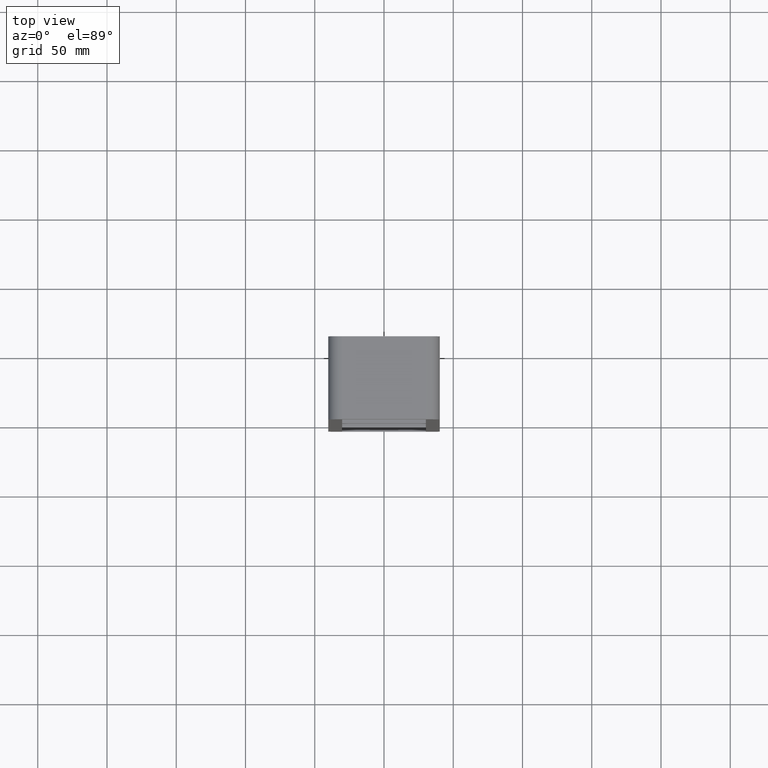
[diagram: clean part render]
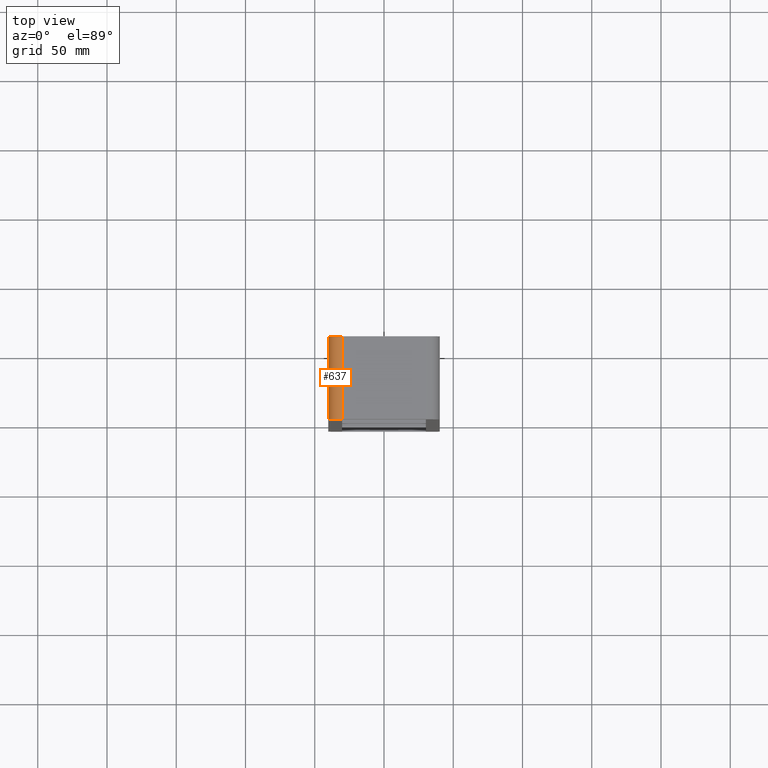
[diagram: same view with one face highlighted and labeled with its STEP entity id]
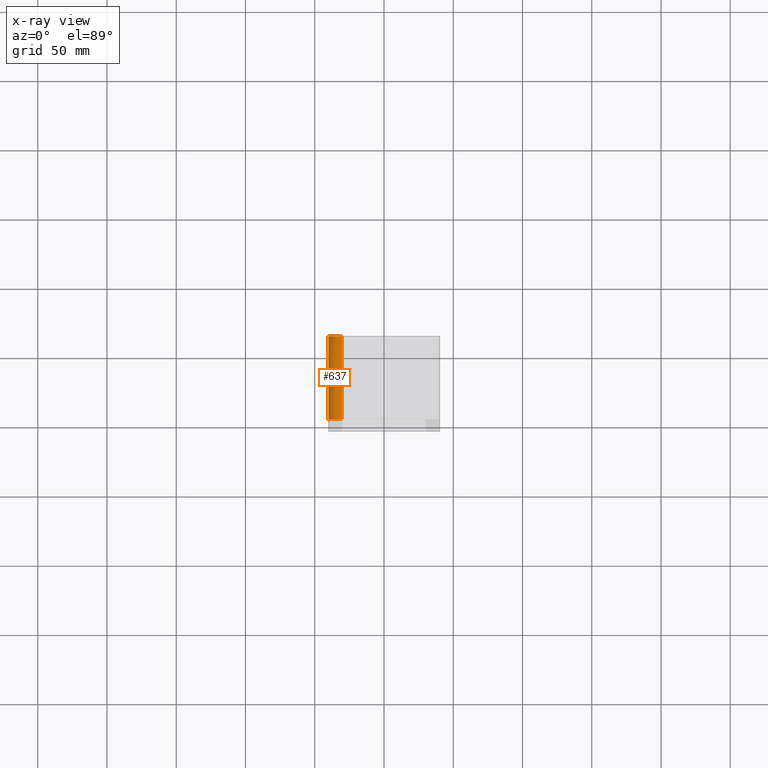
[diagram: x-ray of the same camera — body ghosted, the highlighted face saturated]
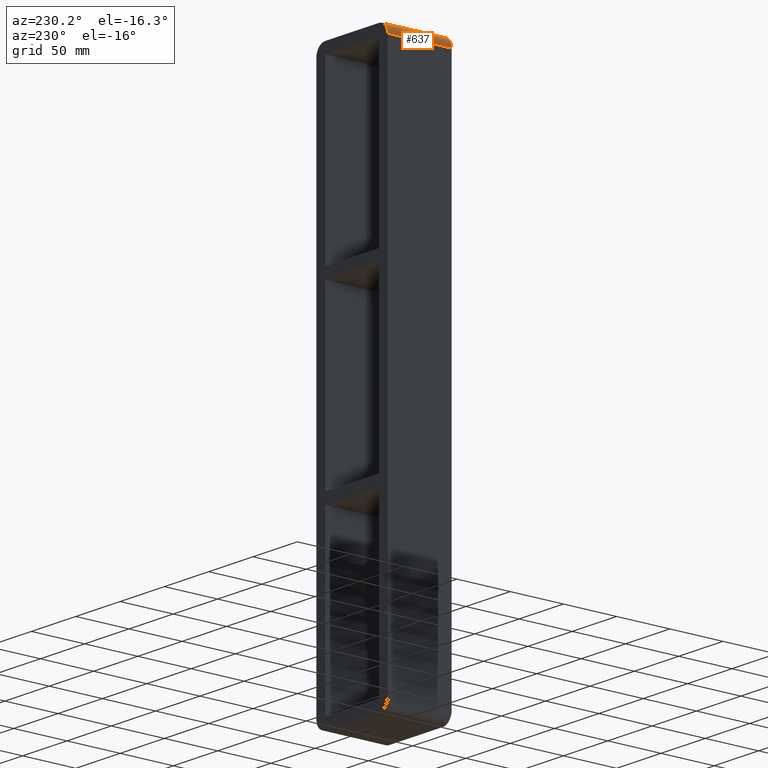
[diagram: same view with one face highlighted and labeled with its STEP entity id]
A machine part, top view. The second image highlights one B-rep face of the part: STEP entity #637.
The next image is the same camera in x-ray: the body ghosted, the highlighted face saturated — about 0% of this face is hidden behind the body in this view.
A second angle (auxiliary view) of the same face is appended — the face is thin or edge-on in the first view.
In plain terms, the highlighted cylindrical surface (edge-blend (fillet) strip) has radius 10 mm, axis along (0, 1, 0).
Its self-contained STEP definition (entity closure, byte-faithful):
#430=CARTESIAN_POINT('',(-30.250000000000004,-3.0,259.25));
#431=VERTEX_POINT('',#430);
#438=CARTESIAN_POINT('',(-40.25,-3.0,249.25));
#439=VERTEX_POINT('',#438);
#440=CARTESIAN_POINT('',(-30.250000000000004,-3.0,249.25));
#441=DIRECTION('',(0.0,1.0,0.0));
#442=DIRECTION('',(-0.707106781186547,0.0,0.707106781186547));
#443=AXIS2_PLACEMENT_3D('',#440,#441,#442);
#444=CIRCLE('',#443,9.999999999999998);
#445=EDGE_CURVE('',#439,#431,#444,.T.);
#596=CARTESIAN_POINT('',(-40.25,57.0,249.25));
#597=VERTEX_POINT('',#596);
#598=CARTESIAN_POINT('',(-40.25,57.0,249.25));
#599=DIRECTION('',(0.0,-1.0,0.0));
#600=VECTOR('',#599,60.0);
#601=LINE('',#598,#600);
#602=EDGE_CURVE('',#597,#439,#601,.T.);
#613=CARTESIAN_POINT('',(-30.250000000000004,0.0,249.25));
#614=DIRECTION('',(0.0,1.0,0.0));
#615=DIRECTION('',(-0.707106781186547,0.0,0.707106781186547));
#616=AXIS2_PLACEMENT_3D('',#613,#614,#615);
#617=CYLINDRICAL_SURFACE('',#616,10.0);
#618=CARTESIAN_POINT('',(-30.250000000000004,57.0,259.25));
#619=VERTEX_POINT('',#618);
#620=CARTESIAN_POINT('',(-30.250000000000004,57.0,249.25));
#621=DIRECTION('',(0.0,-1.0,0.0));
#622=DIRECTION('',(-0.707106781186547,0.0,0.707106781186547));
#623=AXIS2_PLACEMENT_3D('',#620,#621,#622);
#624=CIRCLE('',#623,9.999999999999998);
#625=EDGE_CURVE('',#619,#597,#624,.T.);
#626=ORIENTED_EDGE('',*,*,#625,.T.);
#627=ORIENTED_EDGE('',*,*,#602,.T.);
#628=ORIENTED_EDGE('',*,*,#445,.T.);
#629=CARTESIAN_POINT('',(-30.250000000000004,-3.0,259.25));
#630=DIRECTION('',(0.0,1.0,0.0));
#631=VECTOR('',#630,60.0);
#632=LINE('',#629,#631);
#633=EDGE_CURVE('',#431,#619,#632,.T.);
#634=ORIENTED_EDGE('',*,*,#633,.T.);
#635=EDGE_LOOP('',(#626,#627,#628,#634));
#636=FACE_OUTER_BOUND('',#635,.T.);
#637=ADVANCED_FACE('',(#636),#617,.T.);